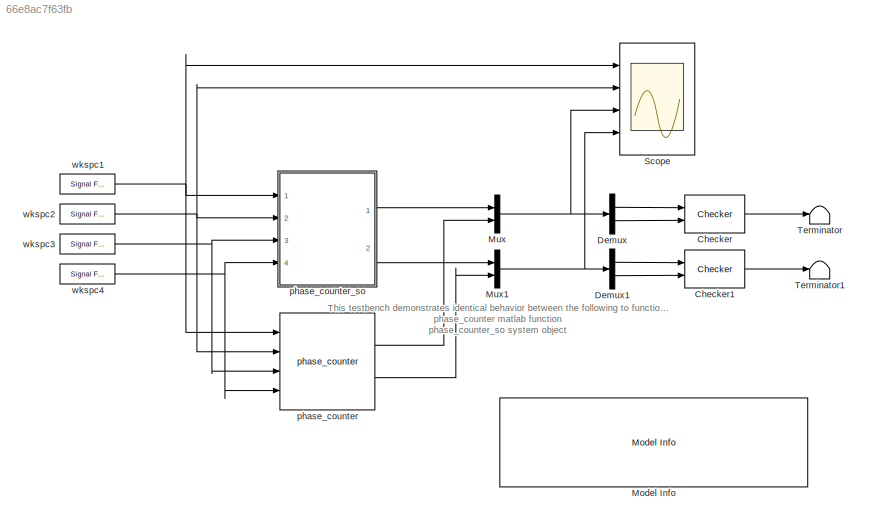
MODEL slx_66e8ac7f63fb
KIND model
CONFIG AbsTol = auto
CONFIG EnableMultiTasking = off
CONFIG FixedStep = auto
CONFIG MaxStep = auto
CONFIG MinStep = auto
CONFIG RelTol = 1e-3
CONFIG SampleTimeConstraint = Unconstrained
CONFIG Solver = FixedStepDiscrete
CONFIG SolverName = FixedStepDiscrete
CONFIG StartTime = 0.0
CONFIG StopTime = 500
BLOCK [Reference] Checker  REF=lib_dsphdlutils_v1/Checker
  Ports = [2, 1]
  SourceBlock = lib_dsphdlutils_v1/Checker
  SourceProductName = DSPHDL Library
  SourceType = Compare two signals
BLOCK [Reference] Checker1  REF=lib_dsphdlutils_v1/Checker
  Ports = [2, 1]
  SourceBlock = lib_dsphdlutils_v1/Checker
  SourceProductName = DSPHDL Library
  SourceType = Compare two signals
BLOCK [Demux] Demux
  DisplayOption = bar
  Outputs = 2
  Ports = [1, 2]
BLOCK [Demux] Demux1
  DisplayOption = bar
  Outputs = 2
  Ports = [1, 2]
BLOCK [Reference] Model Info  REF=simulink/Model-Wide
Utilities/Model Info
  Ports = []
  SourceBlock = simulink/Model-Wide\nUtilities/Model Info
  SourceProductBaseCode = SL
  SourceProductName = Simulink
  SourceType = CMBlock
BLOCK [Mux] Mux
  DisplayOption = bar
  Inputs = 2
  Ports = [2, 1]
BLOCK [Mux] Mux1
  DisplayOption = bar
  Inputs = 2
  Ports = [2, 1]
BLOCK [Scope] Scope
  Floating = off
  NumInputPorts = 4
  Ports = [4]
  ScopeSpecificationString = Simulink.scopes.TimeScopeBlockCfg('CurrentConfiguration', extmgr.ConfigurationSet(extmgr.Configuration('Core','General UI',true),extmgr.Configuration('Core','Source UI',true),extmgr.Configuration('Sources','WiredSimulink',true),extmgr.Configuration('Visuals','Time Domain',true,'SerializedDisplays',{struct('MinYLimReal','-0.01251','MaxYLimReal','0.11261','YLabelReal','','MinYLimMag','0.00000','MaxY...<+3491ch>
BLOCK [Terminator] Terminator
BLOCK [Terminator] Terminator1
BLOCK [Reference] phase_counter  REF=lib_dsphdldsp_v1/phase_counter  (lib defined in slx_893393ac275c)
  Ports = [4, 2]
  SourceBlock = lib_dsphdldsp_v1/phase_counter
  SourceType = SubSystem
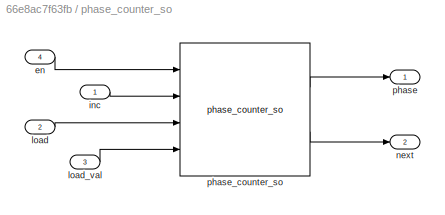
BLOCK [SubSystem] phase_counter_so
  Ports = [4, 2]
  RequestExecContextInheritance = off
BLOCK [Inport] phase_counter_so/en
  IconDisplay = Port number
  Port = 4
BLOCK [Inport] phase_counter_so/inc
  IconDisplay = Port number
BLOCK [Inport] phase_counter_so/load
  IconDisplay = Port number
  Port = 2
BLOCK [Inport] phase_counter_so/load_val
  IconDisplay = Port number
  Port = 3
BLOCK [Outport] phase_counter_so/next
  IconDisplay = Port number
  Port = 2
BLOCK [Outport] phase_counter_so/phase
  IconDisplay = Port number
BLOCK [Reference] phase_counter_so/phase_counter_so  REF=lib_dsphdldsp_v1/phase_counter_so  (lib defined in slx_893393ac275c)
  Ports = [4, 2]
  SourceBlock = lib_dsphdldsp_v1/phase_counter_so
  SourceType = phase_counter_so
BLOCK [Reference] wkspc1  REF=dspsrcs4/Signal From
Workspace
  Ports = [0, 1]
  SourceBlock = dspsrcs4/Signal From\nWorkspace
  SourceProductBaseCode = DS
  SourceProductName = DSP System Toolbox
  SourceType = Signal From Workspace
BLOCK [Reference] wkspc2  REF=dspsrcs4/Signal From
Workspace
  Ports = [0, 1]
  SourceBlock = dspsrcs4/Signal From\nWorkspace
  SourceProductBaseCode = DS
  SourceProductName = DSP System Toolbox
  SourceType = Signal From Workspace
BLOCK [Reference] wkspc3  REF=dspsrcs4/Signal From
Workspace
  Ports = [0, 1]
  SourceBlock = dspsrcs4/Signal From\nWorkspace
  SourceProductBaseCode = DS
  SourceProductName = DSP System Toolbox
  SourceType = Signal From Workspace
BLOCK [Reference] wkspc4  REF=dspsrcs4/Signal From
Workspace
  Ports = [0, 1]
  SourceBlock = dspsrcs4/Signal From\nWorkspace
  SourceProductBaseCode = DS
  SourceProductName = DSP System Toolbox
  SourceType = Signal From Workspace
ANNOTATION (root): This testbench demonstrates identical behavior between the following to functions phase_counter matlab function phase_counter_so system object
LINE Checker1:1 -> Terminator1:1
LINE Checker:1 -> Terminator:1
LINE Demux1:1 -> Checker1:1
LINE Demux1:2 -> Checker1:2
LINE Demux:1 -> Checker:1
LINE Demux:2 -> Checker:2
NET Mux1:1 -> Demux1:1, Scope:4
NET Mux:1 -> Demux:1, Scope:3
LINE phase_counter:1 -> Mux:2
LINE phase_counter:2 -> Mux1:2
LINE phase_counter_so/en:1 -> phase_counter_so/phase_counter_so:1
LINE phase_counter_so/inc:1 -> phase_counter_so/phase_counter_so:2
LINE phase_counter_so/load:1 -> phase_counter_so/phase_counter_so:3
LINE phase_counter_so/load_val:1 -> phase_counter_so/phase_counter_so:4
LINE phase_counter_so/phase_counter_so:1 -> phase_counter_so/phase:1
LINE phase_counter_so/phase_counter_so:2 -> phase_counter_so/next:1
LINE phase_counter_so:1 -> Mux:1
LINE phase_counter_so:2 -> Mux1:1
NET wkspc1:1 -> Scope:1, phase_counter:1, phase_counter_so:1
NET wkspc2:1 -> Scope:2, phase_counter:2, phase_counter_so:2
NET wkspc3:1 -> phase_counter:3, phase_counter_so:3
NET wkspc4:1 -> phase_counter:4, phase_counter_so:4
note: NET lines group one-source signal fan-out (src -> all destinations, sorted); 1:1 wires keep LINE
